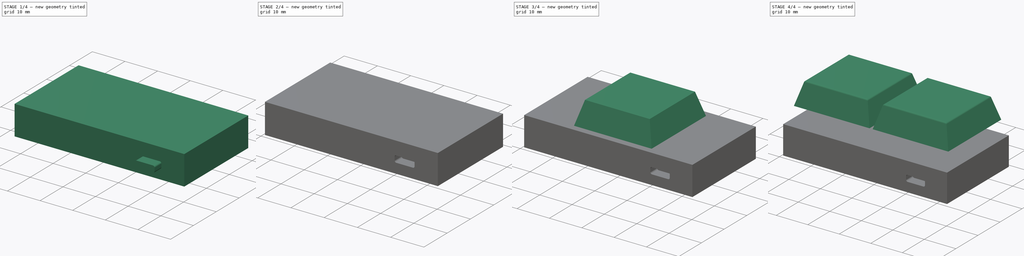
[diagram: build sequence overview — one tinted view per stage of 4, left to right]
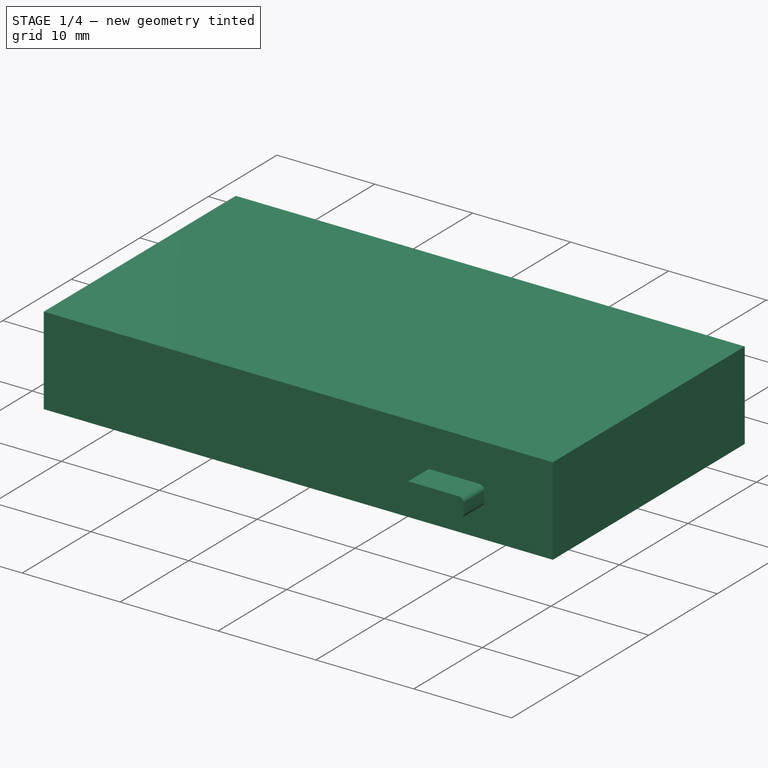
[diagram: stage 1 of 4 — iso view after this stage's code; geometry added in this stage tinted green]
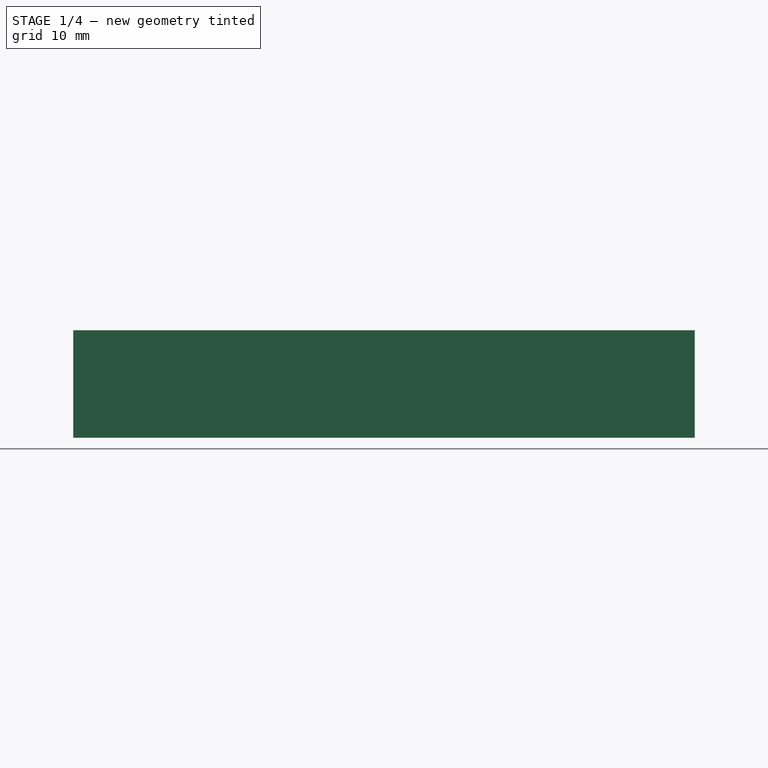
[diagram: stage 1 of 4 — front view after this stage's code; geometry added in this stage tinted green]
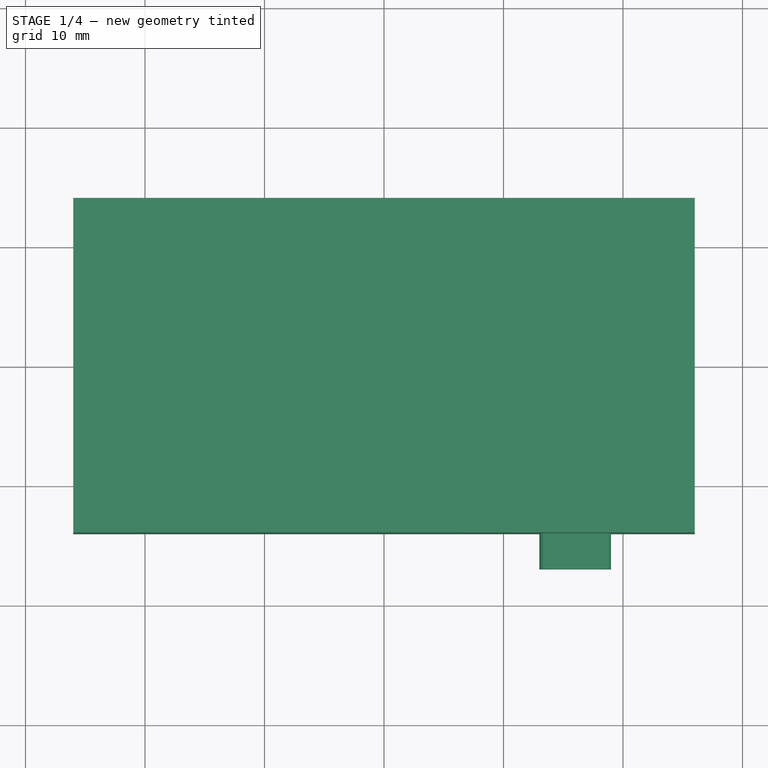
[diagram: stage 1 of 4 — top view after this stage's code; geometry added in this stage tinted green]
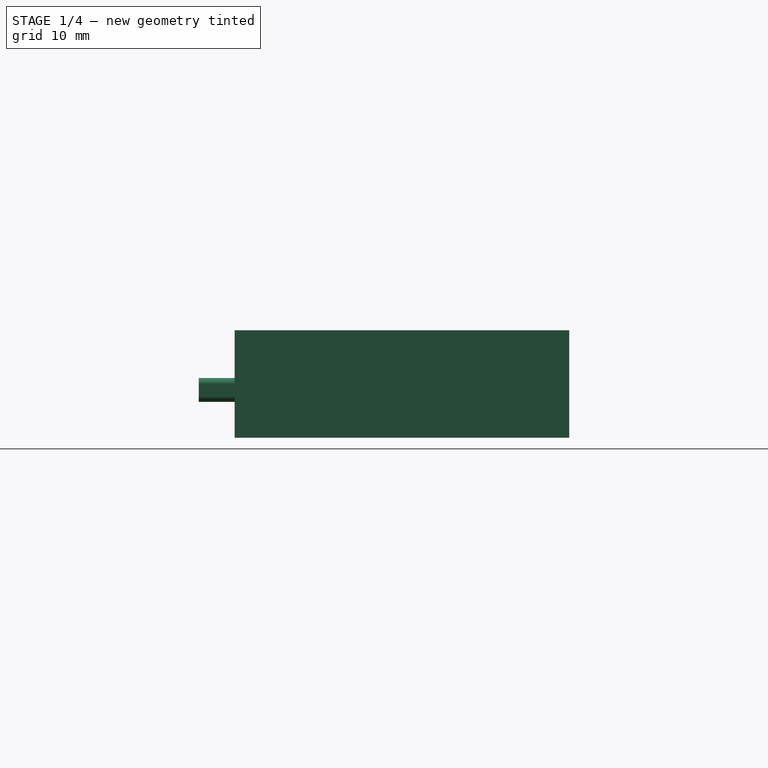
[diagram: stage 1 of 4 — right view after this stage's code; geometry added in this stage tinted green]
FCSTD DOCUMENT  (FreeCAD 0.18.4R)
Label: kl1.0
License: All rights reserved
LicenseURL: http://en.wikipedia.org/wiki/All_rights_reserved
objects: Sketcher::SketchObject×4, Part::Box×4, Part::Fillet×3, Part::Loft×2, Part::Chamfer×2, Part::Feature×2, App::MeasureDistance×2, Part::Cut×1
note: 18 computed .brp shape members not serialized (recipe doc carries the construction recipe); baked Part::Feature solids carry a one-line shape summary decoded from their .brp

FEATURE [Part::Box] Box  label="KORPUS"
  AttacherType = Attacher::AttachEngine3D
  Height = 9
  Length = 52
  Placement = pos=(-26,-14,-9) rot=(0,0,1;0rad)
  Width = 28
FEATURE [Part::Box] Box003  label="Куб002"
  AttacherType = Attacher::AttachEngine3D
  Height = 2
  Length = 6
  Placement = pos=(13,-17,-6) rot=(0,0,1;0rad)
  Width = 6
FEATURE [Part::Fillet] Fillet002
  Base = -> Box003
  Edges = 4 edges r=0.5: [Edge2,Edge4,Edge6,Edge8]
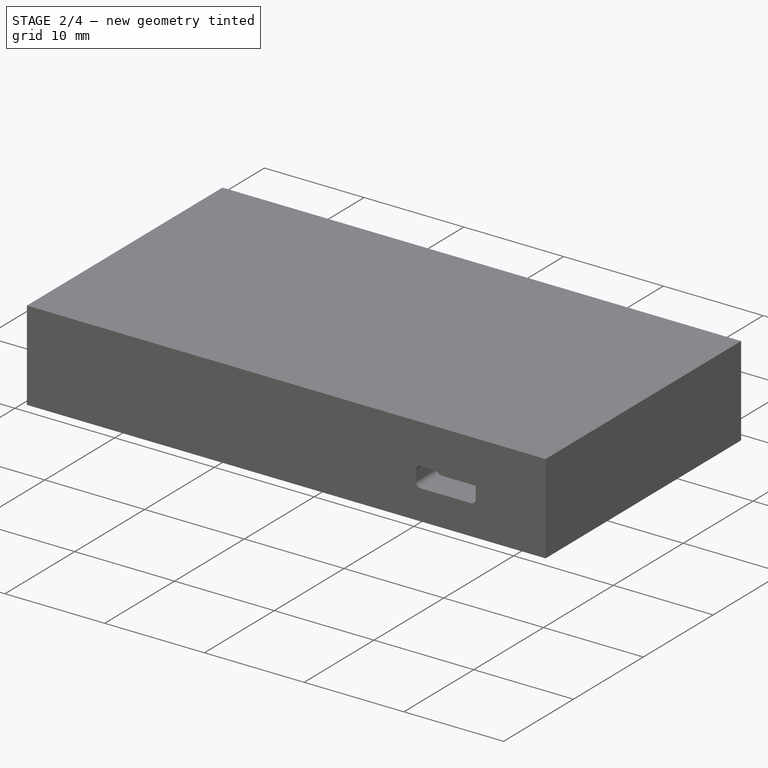
[diagram: stage 2 of 4 — iso view after this stage's code; geometry added in this stage tinted green]
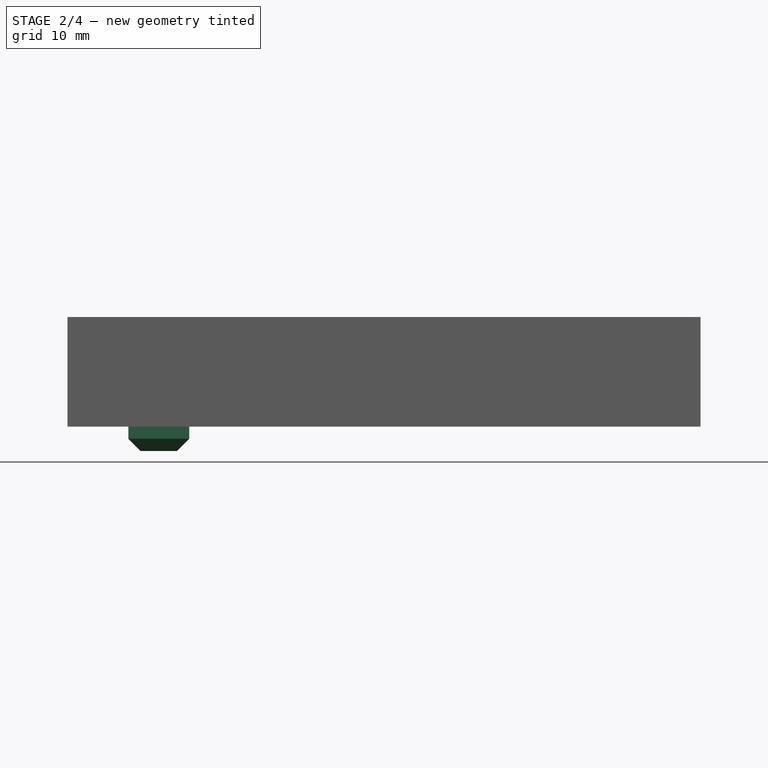
[diagram: stage 2 of 4 — front view after this stage's code; geometry added in this stage tinted green]
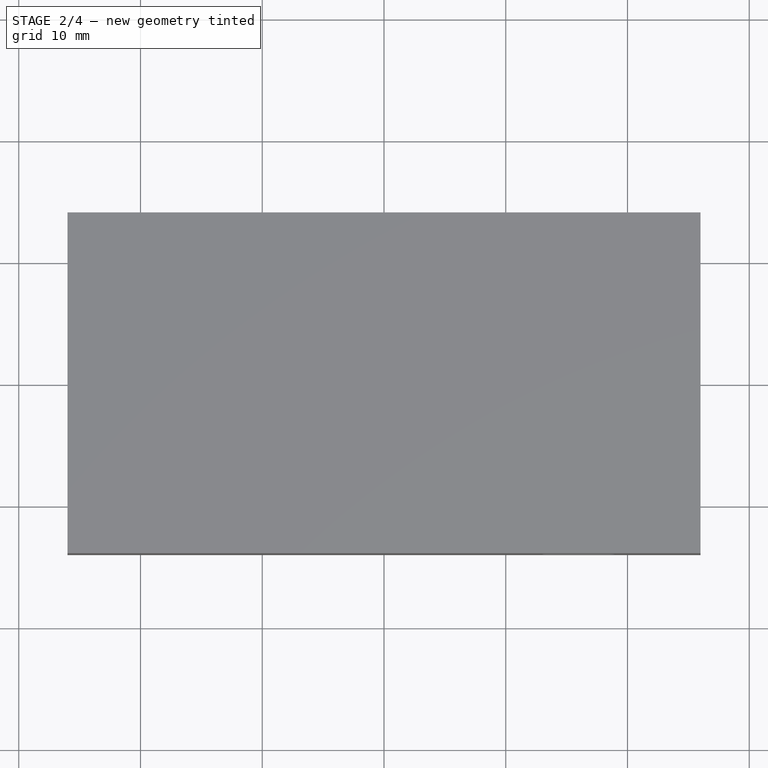
[diagram: stage 2 of 4 — top view after this stage's code; geometry added in this stage tinted green]
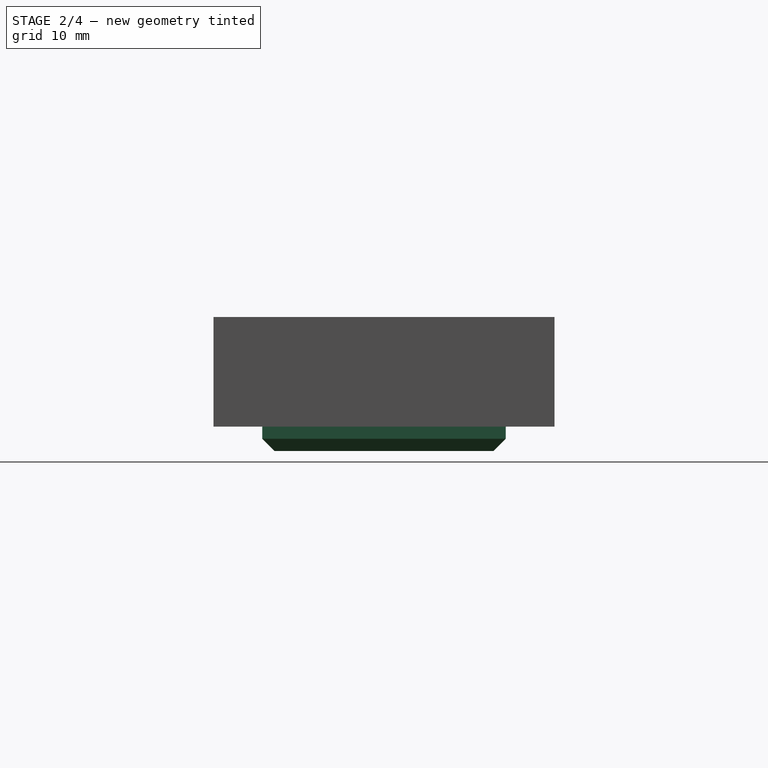
[diagram: stage 2 of 4 — right view after this stage's code; geometry added in this stage tinted green]
FEATURE [Part::Box] Box002  label="Куб001"
  AttacherType = Attacher::AttachEngine3D
  Height = 2
  Length = 5
  Placement = pos=(16,-10,-11) rot=(0,0,1;0rad)
  Width = 20
FEATURE [Part::Chamfer] Chamfer001  label="REZINKA001"
  Base = -> Box002
  Edges = 4 edges r=1: [Edge4,Edge8,Edge9,Edge11]
  Placement = pos=(-37,0,0) rot=(0,0,1;0rad)
FEATURE [Part::Cut] Cut  label="KORP"
  Base = -> Box
  Tool = -> Fillet002
FEATURE [Part::Feature] Part__Feature  label="SW_Cherry_MX_PCB_cp"
  Placement = pos=(12,0,-4) rot=(0,0,1;0rad)
  shape: bbox 15.61 x 15.61 x 18.61 mm, 942 faces, 7 solids (baked)
FEATURE [Part::Feature] Part__Feature001  label="SW_Cherry_MX_PCB_cp001"
  Placement = pos=(-12,0,-4) rot=(0,0,1;0rad)
  shape: bbox 15.61 x 15.61 x 18.61 mm, 942 faces, 7 solids (baked)
FEATURE [App::MeasureDistance] Distance  label="Distance: 52,00 mm"
  Distance = 52
  P1 = (-26,-14,0)
  P2 = (26,-14,0)
FEATURE [App::MeasureDistance] Distance001  label="Distance: 28,00 mm"
  Distance = 28
  P1 = (26,-14,0)
  P2 = (26,14,0)
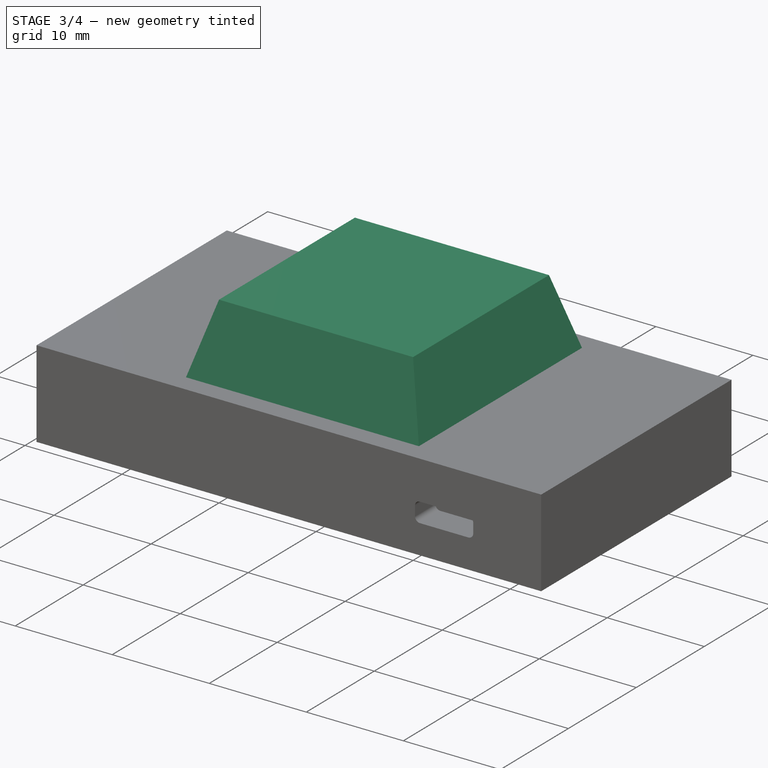
[diagram: stage 3 of 4 — iso view after this stage's code; geometry added in this stage tinted green]
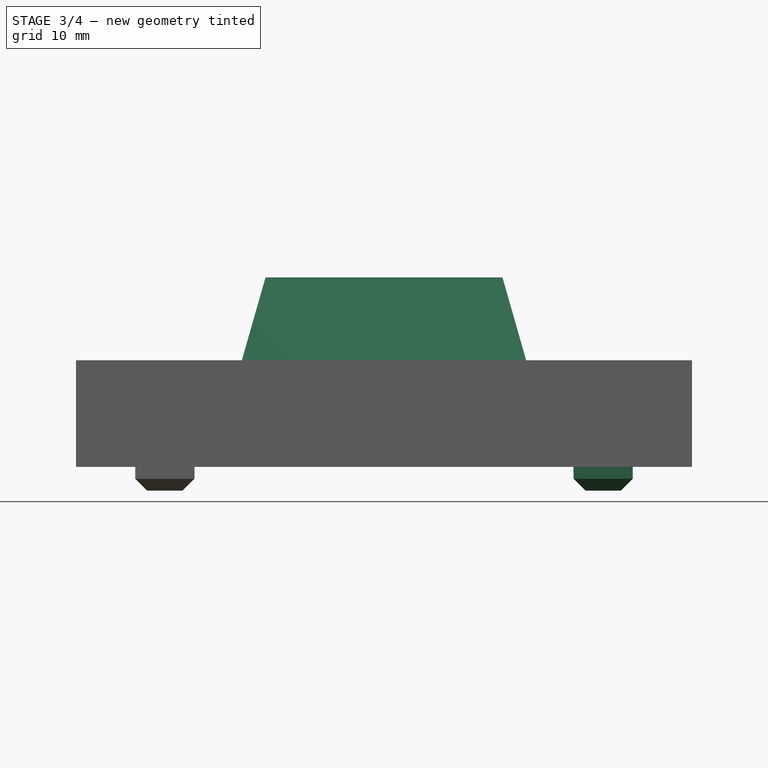
[diagram: stage 3 of 4 — front view after this stage's code; geometry added in this stage tinted green]
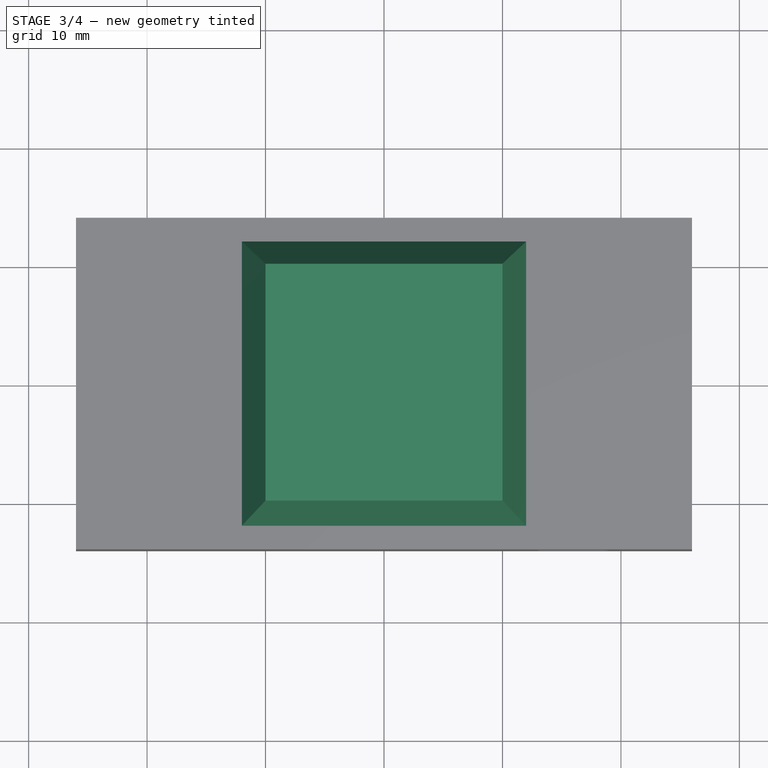
[diagram: stage 3 of 4 — top view after this stage's code; geometry added in this stage tinted green]
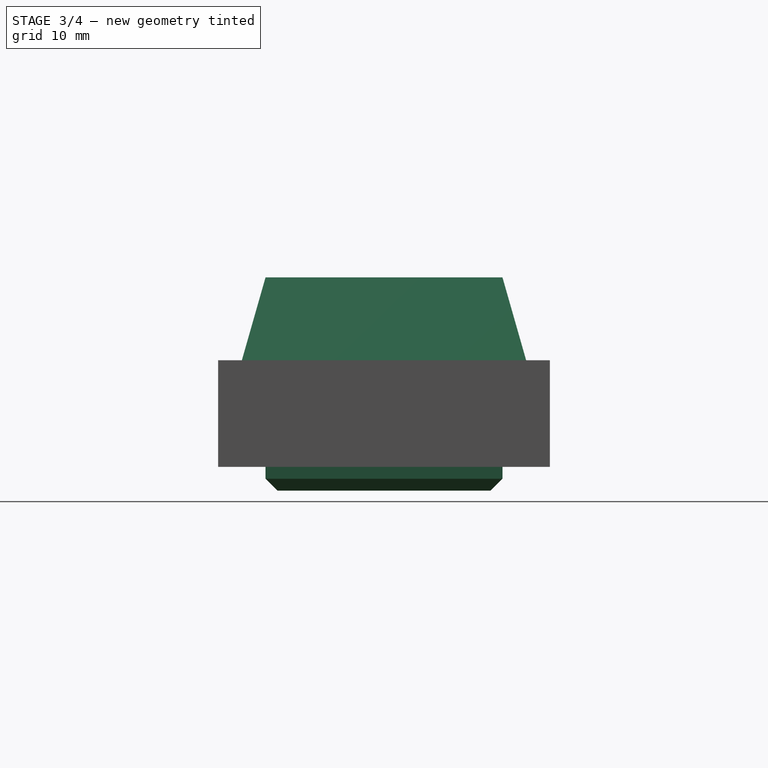
[diagram: stage 3 of 4 — right view after this stage's code; geometry added in this stage tinted green]
FEATURE [Sketcher::SketchObject] Sketch002
  Placement = pos=(0,0,7) rot=(0,0,1;0rad)
  sketch-geometry (4):
    g0: LineSegment StartX=-10 StartY=10 StartZ=0 EndX=10 EndY=10 EndZ=0
    g1: LineSegment StartX=-10 StartY=10 StartZ=0 EndX=-10 EndY=-10 EndZ=0
    g2: LineSegment StartX=-10 StartY=-10 StartZ=0 EndX=10 EndY=-10 EndZ=0
    g3: LineSegment StartX=10 StartY=-10 StartZ=0 EndX=10 EndY=10 EndZ=0
  constraints (12):
    c: Coincident(g3,g0)
    c: Coincident(g0,g1)
    c: Coincident(g1,g2)
    c: Coincident(g2,g3)
    c: Horizontal(g0)
    c: Horizontal(g2)
    c: Vertical(g1)
    c: Vertical(g3)
    c: DistanceX(g0,g0) = 20
    c: DistanceY(g3,g3) = 20
    c: DistanceX(g0) = 10
    c: DistanceY(g0) = 10
FEATURE [Sketcher::SketchObject] Sketch003
  Support = -> [Sketch002]
  sketch-geometry (4):
    g0: LineSegment StartX=-12 StartY=12 StartZ=0 EndX=12 EndY=12 EndZ=0
    g1: LineSegment StartX=12 StartY=12 StartZ=0 EndX=12 EndY=-12 EndZ=0
    g2: LineSegment StartX=12 StartY=-12 StartZ=0 EndX=-12 EndY=-12 EndZ=0
    g3: LineSegment StartX=-12 StartY=-12 StartZ=0 EndX=-12 EndY=12 EndZ=0
  constraints (12):
    c: Coincident(g0,g1)
    c: Coincident(g1,g2)
    c: Coincident(g2,g3)
    c: Coincident(g3,g0)
    c: Horizontal(g0)
    c: Horizontal(g2)
    c: Vertical(g1)
    c: Vertical(g3)
    c: DistanceX(g0,g0) = 24
    c: DistanceY(g3,g3) = 24
    c: DistanceX(g0) = -12
    c: DistanceY(g0) = 12
FEATURE [Part::Loft] Loft001
  Closed = false
  MaxDegree = 5
  Ruled = false
  Sections = -> [Sketch002,Sketch003]
  Solid = true
FEATURE [Part::Box] Box001  label="Куб"
  AttacherType = Attacher::AttachEngine3D
  Height = 2
  Length = 5
  Placement = pos=(16,-10,-11) rot=(0,0,1;0rad)
  Width = 20
FEATURE [Part::Chamfer] Chamfer  label="REZINKA"
  Base = -> Box001
  Edges = 4 edges r=1: [Edge4,Edge8,Edge9,Edge11]
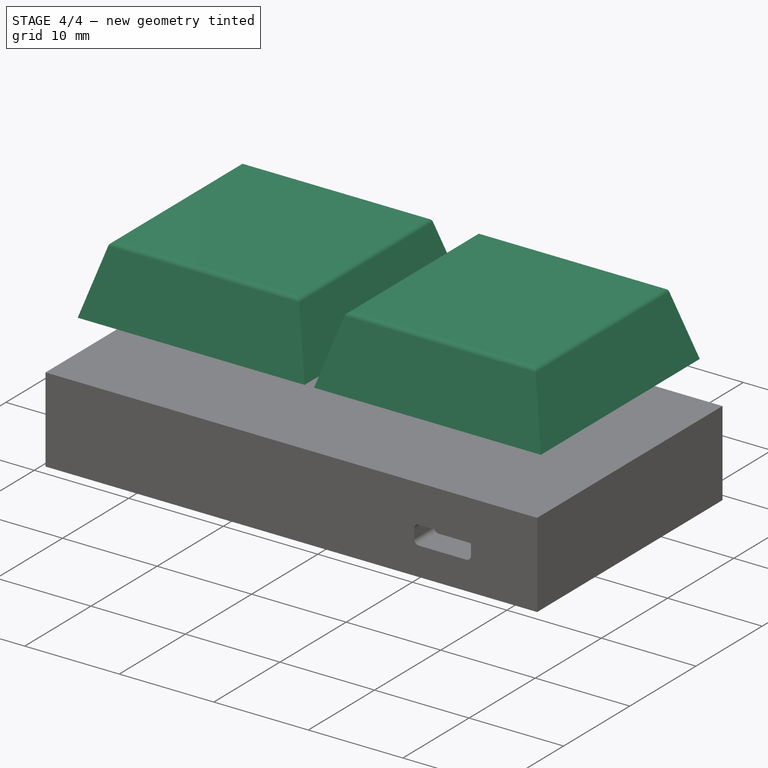
[diagram: stage 4 of 4 — iso view after this stage's code; geometry added in this stage tinted green]
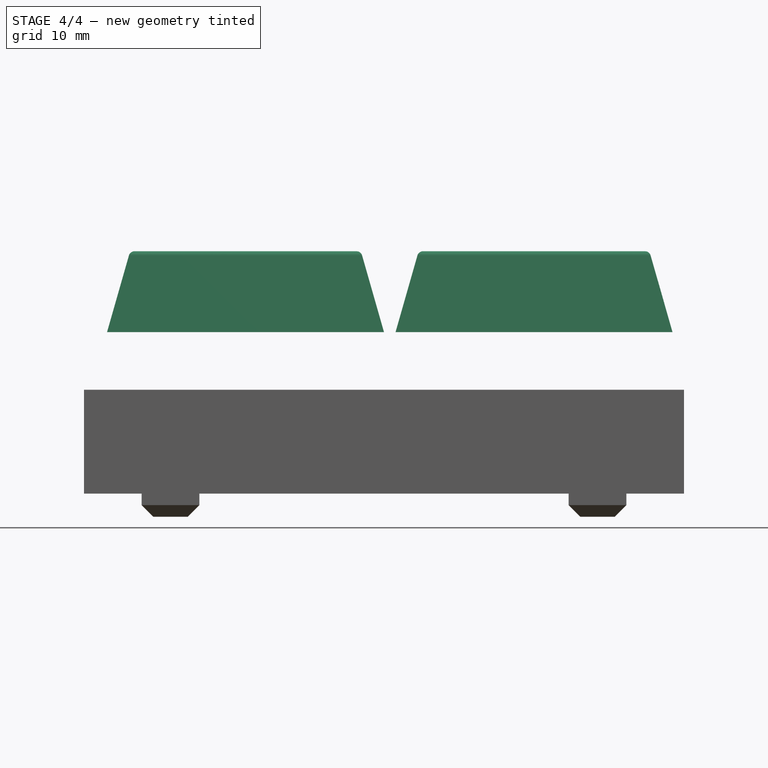
[diagram: stage 4 of 4 — front view after this stage's code; geometry added in this stage tinted green]
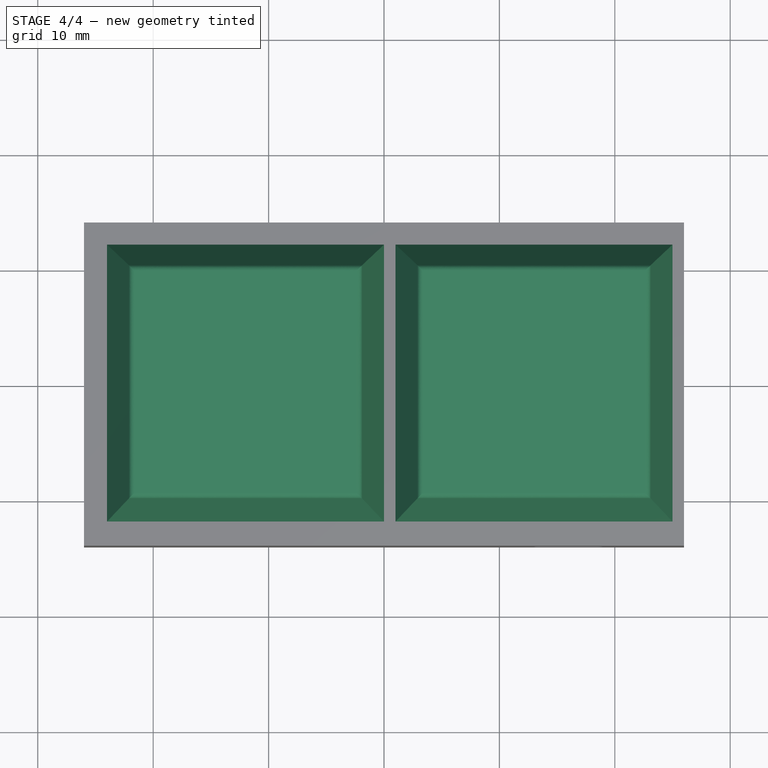
[diagram: stage 4 of 4 — top view after this stage's code; geometry added in this stage tinted green]
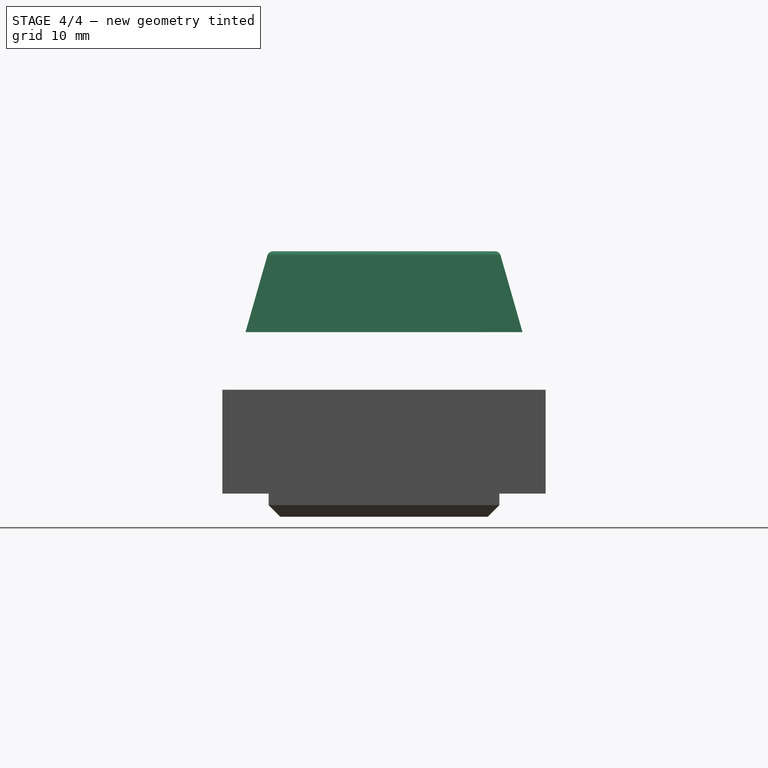
[diagram: stage 4 of 4 — right view after this stage's code; geometry added in this stage tinted green]
FEATURE [Sketcher::SketchObject] Sketch
  Placement = pos=(0,0,7) rot=(0,0,1;0rad)
  sketch-geometry (4):
    g0: LineSegment StartX=-10 StartY=10 StartZ=0 EndX=10 EndY=10 EndZ=0
    g1: LineSegment StartX=-10 StartY=10 StartZ=0 EndX=-10 EndY=-10 EndZ=0
    g2: LineSegment StartX=-10 StartY=-10 StartZ=0 EndX=10 EndY=-10 EndZ=0
    g3: LineSegment StartX=10 StartY=-10 StartZ=0 EndX=10 EndY=10 EndZ=0
  constraints (12):
    c: Coincident(g3,g0)
    c: Coincident(g0,g1)
    c: Coincident(g1,g2)
    c: Coincident(g2,g3)
    c: Horizontal(g0)
    c: Horizontal(g2)
    c: Vertical(g1)
    c: Vertical(g3)
    c: DistanceX(g0,g0) = 20
    c: DistanceY(g3,g3) = 20
    c: DistanceX(g0) = 10
    c: DistanceY(g0) = 10
FEATURE [Sketcher::SketchObject] Sketch001
  Support = -> [Sketch]
  sketch-geometry (4):
    g0: LineSegment StartX=-12 StartY=12 StartZ=0 EndX=12 EndY=12 EndZ=0
    g1: LineSegment StartX=12 StartY=12 StartZ=0 EndX=12 EndY=-12 EndZ=0
    g2: LineSegment StartX=12 StartY=-12 StartZ=0 EndX=-12 EndY=-12 EndZ=0
    g3: LineSegment StartX=-12 StartY=-12 StartZ=0 EndX=-12 EndY=12 EndZ=0
  constraints (12):
    c: Coincident(g0,g1)
    c: Coincident(g1,g2)
    c: Coincident(g2,g3)
    c: Coincident(g3,g0)
    c: Horizontal(g0)
    c: Horizontal(g2)
    c: Vertical(g1)
    c: Vertical(g3)
    c: DistanceX(g0,g0) = 24
    c: DistanceY(g3,g3) = 24
    c: DistanceX(g0) = -12
    c: DistanceY(g0) = 12
FEATURE [Part::Loft] Loft
  Closed = false
  MaxDegree = 5
  Ruled = false
  Sections = -> [Sketch,Sketch001]
  Solid = true
FEATURE [Part::Fillet] Fillet  label="BUTTON"
  Base = -> Loft
  Edges = 4 edges r=0.5: [Edge1,Edge5,Edge8,Edge11]
  Placement = pos=(13,0,5) rot=(0,0,1;0rad)
FEATURE [Part::Fillet] Fillet001  label="BUTTON001"
  Base = -> Loft001
  Edges = 4 edges r=0.5: [Edge1,Edge5,Edge8,Edge11]
  Placement = pos=(-12,0,5) rot=(0,0,1;0rad)
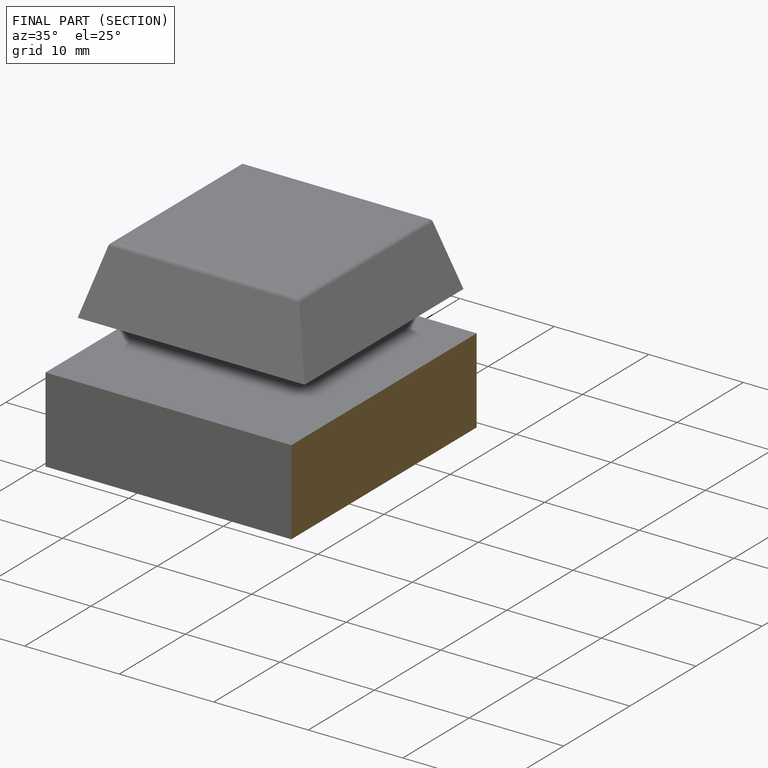
[diagram: finished part — half-section view (interior)]
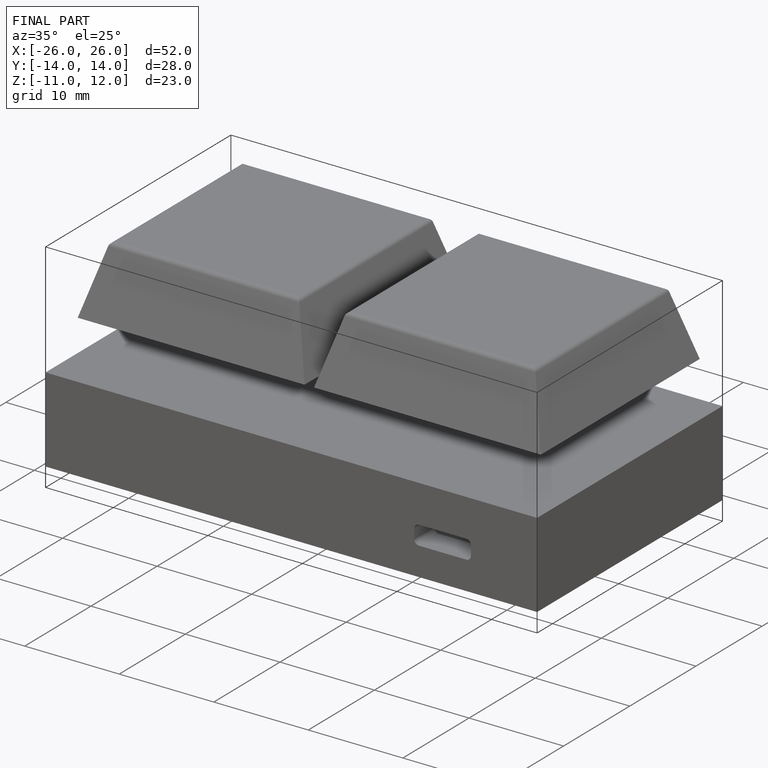
[diagram: finished part — iso view with bounding-box wireframe]
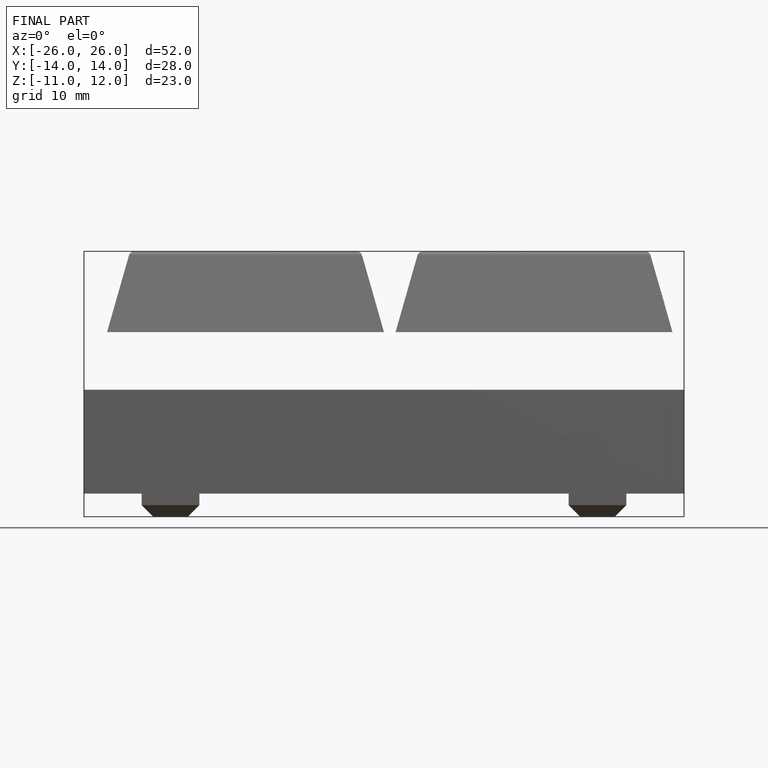
[diagram: finished part — front view with bounding-box wireframe]
